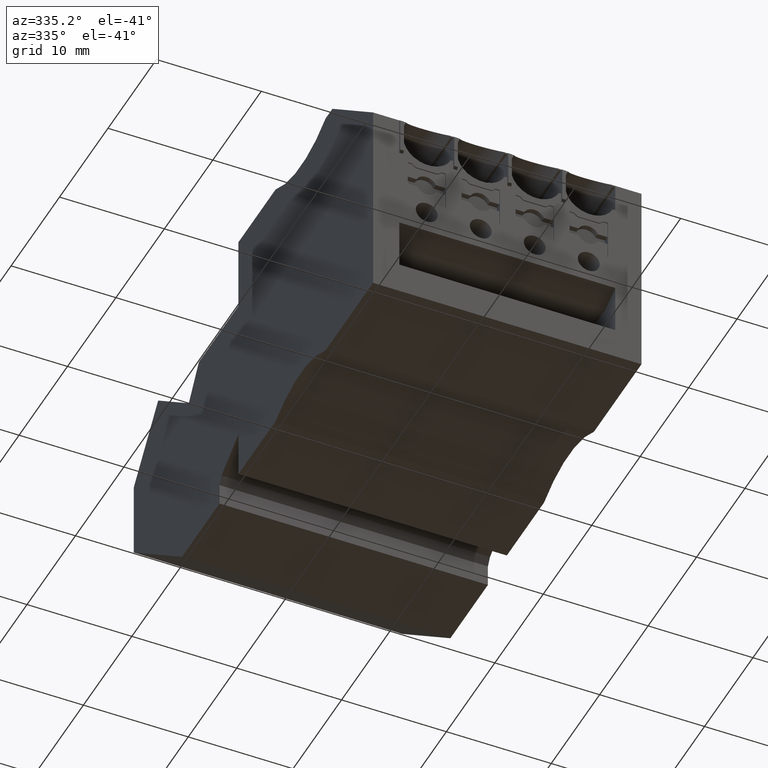
[diagram: clean part render]
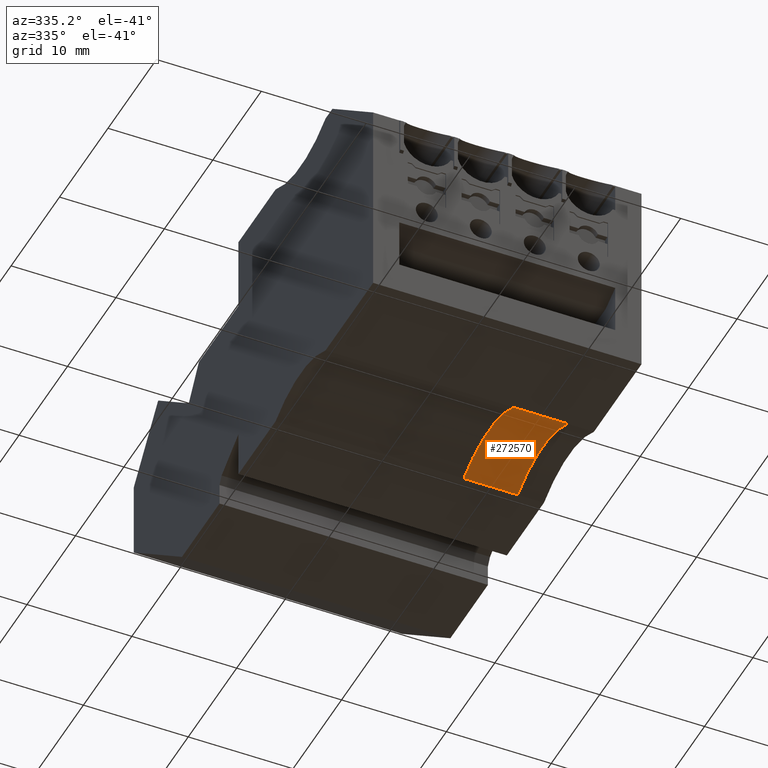
[diagram: same view with one face highlighted and labeled with its STEP entity id]
A machine part, auxiliary view. The second image highlights one B-rep face of the part: STEP entity #272570.
In plain terms, the highlighted cylindrical surface (partial cylindrical patch) has radius 10 mm, axis along (-1, -0, 0).
Its self-contained STEP definition (entity closure, byte-faithful):
#10270=CARTESIAN_POINT('',(430.260883772267,670.934347639395,
93.8699999926897));
#10280=DIRECTION('',(1.66699210889915E-10,4.90742846146349E-10,1.));
#10290=VECTOR('',#10280,1.);
#10300=LINE('',#10270,#10290);
#14150=CARTESIAN_POINT('',(430.260883742499,670.934347639877,
88.7199999955692));
#14160=VERTEX_POINT('',#14150);
#14190=CARTESIAN_POINT('',(430.260883755086,670.934347662516,
83.5700000008727));
#14200=VERTEX_POINT('',#14190);
#14210=EDGE_CURVE('',#14200,#14160,#10300,.T.);
#18300=CARTESIAN_POINT('',(440.590572493105,670.934347727425,
284.419999991964));
#18310=DIRECTION('',(-1.66699262872186E-10,-4.90742678260922E-10,-1.));
#18320=VECTOR('',#18310,1.);
#18330=LINE('',#18300,#18320);
#142360=CARTESIAN_POINT('',(440.590572462231,670.934347627434,
88.7199999938472));
#142370=VERTEX_POINT('',#142360);
#142380=CARTESIAN_POINT('',(440.590572459624,670.934347624436,
83.5699999987922));
#142390=VERTEX_POINT('',#142380);
#142400=EDGE_CURVE('',#142370,#142390,#18330,.T.);
#144110=CARTESIAN_POINT('',(435.425728112936,662.371381971997,
284.419999997027));
#144120=DIRECTION('',(-1.66699262872186E-10,-4.90742678260922E-10,-1.));
#144130=DIRECTION('',(1.,-1.20456367103123E-9,-1.66698994956591E-10));
#144140=AXIS2_PLACEMENT_3D('',#144110,#144120,#144130);
#144150=CYLINDRICAL_SURFACE('',#144140,10.);
#272390=ORIENTED_EDGE('',*,*,#14210,.F.);
#272400=CARTESIAN_POINT('',(435.425728080313,662.371381875959,
88.7199999989104));
#272410=DIRECTION('',(1.66699262872186E-10,4.90742678260922E-10,1.));
#272420=DIRECTION('',(1.,-1.20456372654239E-9,-1.66699262281055E-10));
#272430=AXIS2_PLACEMENT_3D('',#272400,#272410,#272420);
#272440=CIRCLE('',#272430,10.);
#272450=EDGE_CURVE('',#142370,#14160,#272440,.T.);
#272460=ORIENTED_EDGE('',*,*,#272450,.T.);
#272470=ORIENTED_EDGE('',*,*,#142400,.F.);
#272480=CARTESIAN_POINT('',(435.425728079455,662.371381873432,
83.5700000042139));
#272490=DIRECTION('',(1.66699262872186E-10,4.90742678260922E-10,1.));
#272500=DIRECTION('',(1.,-1.20456367103123E-9,-1.66698994956591E-10));
#272510=AXIS2_PLACEMENT_3D('',#272480,#272490,#272500);
#272520=CIRCLE('',#272510,10.);
#272530=EDGE_CURVE('',#142390,#14200,#272520,.T.);
#272540=ORIENTED_EDGE('',*,*,#272530,.F.);
#272550=EDGE_LOOP('',(#272540,#272470,#272460,#272390));
#272560=FACE_OUTER_BOUND('',#272550,.T.);
#272570=ADVANCED_FACE('',(#272560),#144150,.F.);